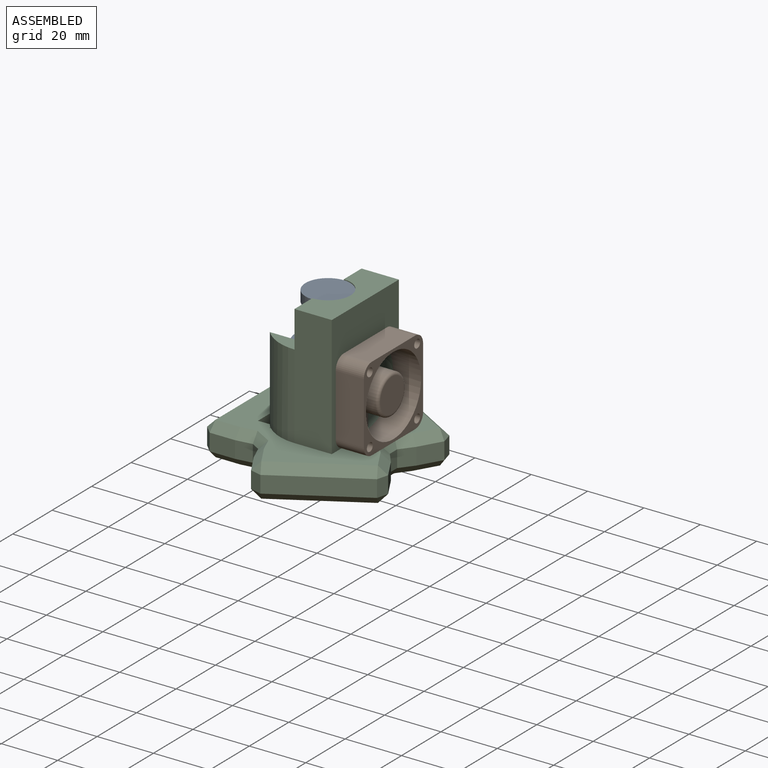
[diagram: assembled view]
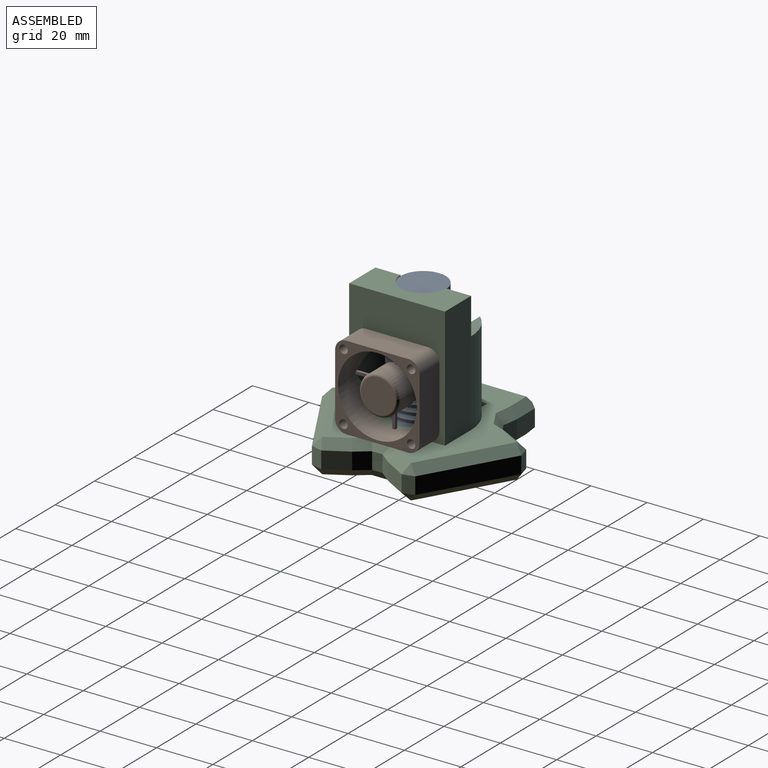
[diagram: assembled view, second angle]
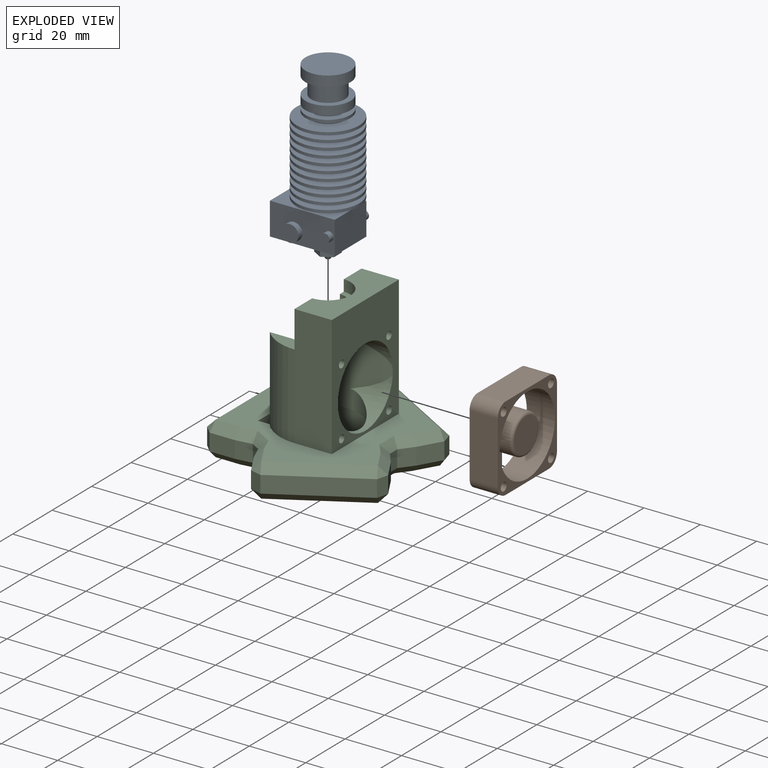
[diagram: exploded view]
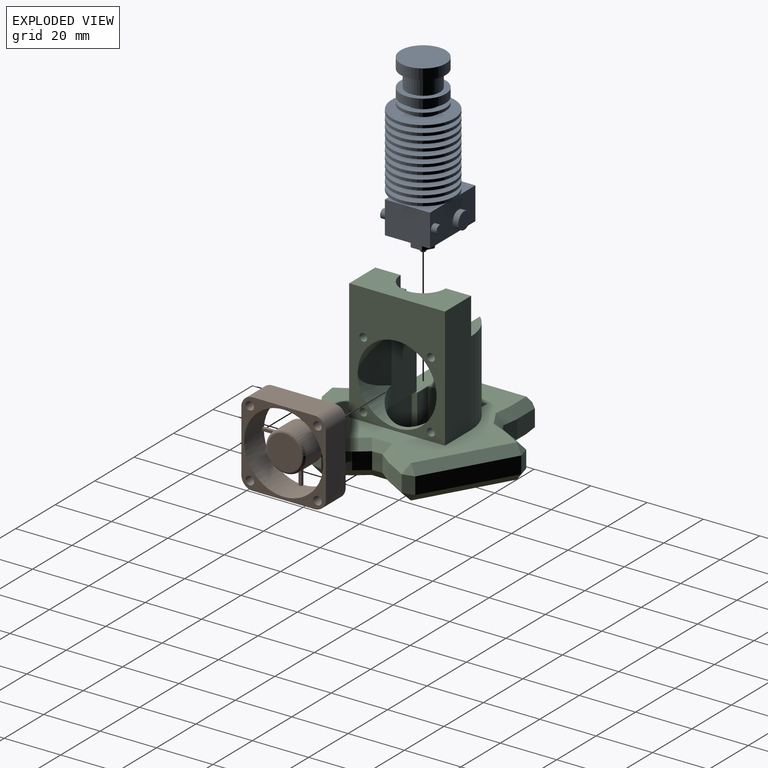
[diagram: exploded view, second angle]
ASSEMBLY  parts=3 mates=2
PART A: 81 faces, bbox 26.2x22.3x62.3 mm
  f0: plane 23x16mm, normal (0,0,-1), area 348.4mm2, adj f57,f58,f59,f60,f70
  f1: cylinder r=8mm len=16mm, axis (0,0,1), area 186mm2, adj f2,f55
  f2: plane 16x16mm, normal (0,0,-1), area 88mm2, adj f1,f3
  f3: cylinder r=6mm len=12mm, axis (0,0,1), area 226.2mm2, adj f2,f4
  f4: plane 16x16mm, normal (0,0,1), area 88mm2, adj f3,f5
  f5: cylinder r=8mm len=16mm, axis (0,0,1), area 150.8mm2, adj f4,f6
  f6: plane 16x16mm, normal (0,0,-1), area 103.4mm2, adj f5,f7
  f7: cylinder r=5.58mm len=11.15mm, axis (0,0,1), area 52.5mm2, adj f6,f8
  f8: plane 16x16mm, normal (0,0,1), area 103.4mm2, adj f7,f9
  f9: cylinder r=8mm len=16mm, axis (0,0,1), area 50.3mm2, adj f8,f10
  f10: plane 16x16mm, normal (0,0,-1), area 103.4mm2, adj f9,f11
  f11: cylinder r=5.58mm len=11.15mm, axis (0,0,1), area 52.5mm2, adj f10,f12
  f12: plane 22.3x22.3mm, normal (0,0,1), area 292.9mm2, adj f11,f13
  f13: cylinder r=11.15mm len=22.3mm, axis (0,0,1), area 70.1mm2, adj f12,f14
  f14: plane 22.3x22.3mm, normal (0,0,-1), area 292.9mm2, adj f13,f15
  f15: cylinder r=5.58mm len=11.15mm, axis (0,0,1), area 52.5mm2, adj f14,f16
  f16: plane 22.3x22.3mm, normal (0,0,1), area 292.9mm2, adj f15,f17
  f17: cylinder r=11.15mm len=22.3mm, axis (0,0,1), area 70.1mm2, adj f16,f18
  f18: plane 22.3x22.3mm, normal (0,0,-1), area 292.9mm2, adj f17,f19
  f19: cylinder r=5.58mm len=11.15mm, axis (0,0,1), area 52.5mm2, adj f18,f20
  f20: plane 22.3x22.3mm, normal (0,0,1), area 292.9mm2, adj f19,f21
  f21: cylinder r=11.15mm len=22.3mm, axis (0,0,1), area 70.1mm2, adj f20,f22
  f22: plane 22.3x22.3mm, normal (0,0,-1), area 292.9mm2, adj f21,f23
  f23: cylinder r=5.58mm len=11.15mm, axis (0,0,1), area 52.5mm2, adj f22,f24
  f24: plane 22.3x22.3mm, normal (0,0,1), area 292.9mm2, adj f23,f25
  f25: cylinder r=11.15mm len=22.3mm, axis (0,0,1), area 70.1mm2, adj f24,f26
  f26: plane 22.3x22.3mm, normal (0,0,-1), area 292.9mm2, adj f25,f27
  f27: cylinder r=5.58mm len=11.15mm, axis (0,0,1), area 52.5mm2, adj f26,f28
  f28: plane 22.3x22.3mm, normal (0,0,1), area 292.9mm2, adj f27,f29
  f29: cylinder r=11.15mm len=22.3mm, axis (0,0,1), area 70.1mm2, adj f28,f30
  f30: plane 22.3x22.3mm, normal (0,0,-1), area 292.9mm2, adj f29,f31
  f31: cylinder r=5.58mm len=11.15mm, axis (0,0,1), area 52.5mm2, adj f30,f32
  f32: plane 22.3x22.3mm, normal (0,0,1), area 292.9mm2, adj f31,f33
  f33: cylinder r=11.15mm len=22.3mm, axis (0,0,1), area 70.1mm2, adj f32,f34
  f34: plane 22.3x22.3mm, normal (0,0,-1), area 292.9mm2, adj f33,f35
  f35: cylinder r=5.58mm len=11.15mm, axis (0,0,1), area 52.5mm2, adj f34,f36
  f36: plane 22.3x22.3mm, normal (0,0,1), area 292.9mm2, adj f35,f37
  f37: cylinder r=11.15mm len=22.3mm, axis (0,0,1), area 70.1mm2, adj f36,f38
  f38: plane 22.3x22.3mm, normal (0,0,-1), area 292.9mm2, adj f37,f39
  f39: cylinder r=5.58mm len=11.15mm, axis (0,0,1), area 52.5mm2, adj f38,f40
  f40: plane 22.3x22.3mm, normal (0,0,1), area 292.9mm2, adj f39,f41
  f41: cylinder r=11.15mm len=22.3mm, axis (0,0,1), area 70.1mm2, adj f40,f42
  f42: plane 22.3x22.3mm, normal (0,0,-1), area 292.9mm2, adj f41,f43
  f43: cylinder r=5.58mm len=11.15mm, axis (0,0,1), area 52.5mm2, adj f42,f44
  f44: plane 22.3x22.3mm, normal (0,0,1), area 292.9mm2, adj f43,f45
  f45: cylinder r=11.15mm len=22.3mm, axis (0,0,1), area 70.1mm2, adj f44,f46
  f46: plane 22.3x22.3mm, normal (0,0,-1), area 292.9mm2, adj f45,f47
  f47: cylinder r=5.58mm len=11.15mm, axis (0,0,1), area 52.5mm2, adj f46,f48
  f48: plane 22.3x22.3mm, normal (0,0,1), area 292.9mm2, adj f47,f49
  f49: cylinder r=11.15mm len=22.3mm, axis (0,0,1), area 70.1mm2, adj f48,f50
  f50: plane 22.3x22.3mm, normal (0,0,-1), area 292.9mm2, adj f49,f51
  f51: cylinder r=5.58mm len=11.15mm, axis (0,0,1), area 52.5mm2, adj f50,f52
  f52: plane 22.3x22.3mm, normal (0,0,1), area 292.9mm2, adj f51,f53
  f53: cylinder r=11.15mm len=22.3mm, axis (0,0,1), area 70.1mm2, adj f52,f54
  f54: plane 22.3x22.3mm, normal (0,0,-1), area 383.7mm2, adj f53,f56
  f55: plane 16x16mm, normal (0,0,1), area 201.1mm2, adj f1
  f56: cylinder r=1.47mm len=2.95mm, axis (0,0,1), area 19.5mm2, adj f54,f61
  f57: plane 16x11.5mm, normal (1,0,0), area 184mm2, adj f0,f58,f60,f61
  f58: plane 23x11.5mm, normal (0,-1,0), area 228.7mm2, adj f0,f57,f59,f61,f62,f64
  f59: plane 16x11.5mm, normal (-1,0,0), area 184mm2, adj f0,f58,f60,f61
  f60: plane 23x11.5mm, normal (0,1,0), area 228.7mm2, adj f0,f57,f59,f61,f66,f68
  f61: plane 23x16mm, normal (0,0,1), area 361.2mm2, adj f56,f57,f58,f59,f60
  f62: cylinder r=3mm len=6mm, axis (0,1,0), area 37.7mm2, adj f58,f63
  f63: plane 6x6mm, normal (0,-1,0), area 28.3mm2, adj f62
  f64: cylinder r=1.55mm len=3.1mm, axis (0,1,0), area 19.5mm2, adj f58,f65
  f65: plane 3.1x3.1mm, normal (0,-1,0), area 7.5mm2, adj f64
  f66: cylinder r=3mm len=6mm, axis (0,-1,0), area 37.7mm2, adj f60,f67
  f67: plane 6x6mm, normal (0,1,0), area 28.3mm2, adj f66
  f68: cylinder r=1.55mm len=3.1mm, axis (0,-1,0), area 19.5mm2, adj f60,f69
  f69: plane 3.1x3.1mm, normal (0,1,0), area 7.5mm2, adj f68
  f70: cylinder r=2.5mm len=5mm, axis (0,0,1), area 15.7mm2, adj f0,f71
  f71: plane 8.08x7mm, normal (0,0,1), area 22.8mm2, adj f70,f75,f76,f77,f78,f79,f80
  f72: plane 1.54x1.54mm, normal (0,0,-1), area 1.9mm2, adj f73
  f73: cone r=0.77mm half-angle=32deg, axis (0,0,1), area 20.7mm2, adj f72,f74
  f74: plane 8.08x7mm, normal (0,0,-1), area 29.6mm2, adj f73,f75,f76,f77,f78,f79,f80
  f75: plane 3.5x3mm, normal (0.5,0.87,0), area 12.1mm2, adj f71,f74,f76,f80
  f76: plane 3.5x3mm, normal (-0.5,0.87,0), area 12.1mm2, adj f71,f74,f75,f77
  f77: plane 4.04x3mm, normal (-1,0,0), area 12.1mm2, adj f71,f74,f76,f78
  f78: plane 3.5x3mm, normal (-0.5,-0.87,0), area 12.1mm2, adj f71,f74,f77,f79
  f79: plane 3.5x3mm, normal (0.5,-0.87,0), area 12.1mm2, adj f71,f74,f78,f80
  f80: plane 4.04x3mm, normal (1,0,0), area 12.1mm2, adj f71,f74,f75,f79
PART B: 30 faces, bbox 30x10x30 mm
  f0: plane 22x10mm, normal (-1,0,0), area 220mm2, adj f9,f10,f11,f14
  f1: plane 22x10mm, normal (0,0,-1), area 220mm2, adj f9,f10,f11,f12
  f2: plane 22x10mm, normal (1,0,0), area 220mm2, adj f9,f10,f12,f13
  f3: cylinder r=1.5mm len=10mm, axis (0,1,0), area 94.2mm2, adj f9,f10
  f4: cylinder r=1.5mm len=10mm, axis (0,1,0), area 94.2mm2, adj f9,f10
  f5: cylinder r=1.5mm len=10mm, axis (0,1,0), area 94.2mm2, adj f9,f10
  f6: cylinder r=14mm len=28mm, axis (0,1,0), area 875.6mm2, adj f9,f10,f15,f16,f17,f18,f19,f20
  f7: plane 22x10mm, normal (0,0,1), area 220mm2, adj f9,f10,f13,f14
  f8: cylinder r=1.5mm len=10mm, axis (0,1,0), area 94.2mm2, adj f9,f10
  f9: plane 30x30mm, normal (0,-1,0), area 242.2mm2, adj f0,f1,f2,f3,f4,f5,f6,f7
  f10: plane 30x30mm, normal (0,1,0), area 424.2mm2, adj f0,f1,f2,f3,f4,f5,f6,f7
  f11: cylinder r=4mm len=10mm, axis (0,-1,0), area 62.8mm2, adj f0,f1,f9,f10
  f12: cylinder r=4mm len=10mm, axis (0,1,0), area 62.8mm2, adj f1,f2,f9,f10
  f13: cylinder r=4mm len=10mm, axis (0,-1,0), area 62.8mm2, adj f2,f7,f9,f10
  f14: cylinder r=4mm len=10mm, axis (0,1,0), area 62.8mm2, adj f0,f7,f9,f10
  f15: plane 7x1mm, normal (0,0,1), area 7mm2, adj f6,f10,f17,f27
  f16: plane 7.04x1mm, normal (0,0,-1), area 7mm2, adj f6,f10,f17,f27
  f17: plane 7.07x1mm, normal (0,-1,0), area 7mm2, adj f6,f15,f16,f27
  f18: plane 7x1mm, normal (-1,0,0), area 7mm2, adj f6,f10,f20,f27
  f19: plane 7.04x1mm, normal (1,0,0), area 7mm2, adj f6,f10,f20,f27
  f20: plane 7.07x1mm, normal (0,-1,0), area 7mm2, adj f6,f18,f19,f27
  f21: plane 7.04x1mm, normal (0,0,1), area 7mm2, adj f6,f10,f23,f27
  f22: plane 7x1mm, normal (0,0,-1), area 7mm2, adj f6,f10,f23,f27
  f23: plane 7.07x1mm, normal (0,-1,0), area 7mm2, adj f6,f21,f22,f27
  f24: plane 7.04x1mm, normal (-1,0,0), area 7mm2, adj f6,f10,f26,f27
  f25: plane 7x1mm, normal (1,0,0), area 7mm2, adj f6,f10,f26,f27
  f26: plane 7.07x1mm, normal (0,-1,0), area 7mm2, adj f6,f24,f25,f27
  f27: cylinder r=7mm len=14mm, axis (0,1,0), area 369.8mm2, adj f10,f15,f16,f17,f18,f19,f20,f21
  f28: plane 12x12mm, normal (0,-1,0), area 113.1mm2, adj f29
  f29: torus R=6mm, axis (0,-1,0), area 65.5mm2, adj f27,f28
PART C: 119 faces, bbox 62.3x70.7x55 mm
  f0: plane 7.18x2.59mm, normal (0,0,-1), area 12.7mm2, adj f1,f99,f113
  f1: cylinder r=11.25mm len=7.18mm, axis (0,0,-1), area 13mm2, adj f0,f90,f99
  f2: plane 16x8mm, normal (0,0,1), area 44mm2, adj f111,f113,f115,f116
  f3: plane 12.75x5.75mm, normal (0,0,1), area 50.8mm2, adj f96,f97,f111
  f4: plane 22.5x8.46mm, normal (0,0,-1), area 48.8mm2, adj f82,f88,f89,f96,f97,f101
  f5: plane 22.5x8.46mm, normal (0,0,-1), area 48.8mm2, adj f82,f83,f84,f90,f91,f101
  f6: plane 16.67x13.25mm, normal (0.2,0.98,0), area 153.6mm2, adj f90,f98,f99
  f7: plane 16.67x13.25mm, normal (0.2,-0.98,0), area 153.6mm2, adj f97,f98,f99
  f8: plane 65.5x56.72mm, normal (0,0,1), area 1409.9mm2, adj f25,f33,f34,f37,f38,f43,f44,f47
  f9: plane 6x5.41mm, normal (-0.93,-0.38,0), area 35mm2, adj f10,f42,f47,f50
  f10: plane 7.79x6mm, normal (-0.87,-0.5,0), area 54mm2, adj f9,f51,f55,f56
  f11: plane 29.45x17mm, normal (0.5,-0.87,0), area 204mm2, adj f56,f61,f65,f66
  f12: plane 7.79x6mm, normal (0.87,0.5,0), area 54mm2, adj f13,f66,f71,f74
  f13: plane 6x4.62mm, normal (0.79,0.61,0), area 35mm2, adj f12,f75,f78,f81
  f14: plane 6x4.62mm, normal (0.79,-0.61,0), area 35mm2, adj f15,f76,f77,f81
  f15: plane 7.79x6mm, normal (0.87,-0.5,0), area 54mm2, adj f14,f63,f72,f73
  f16: plane 29.45x17mm, normal (0.5,0.87,0), area 204mm2, adj f53,f62,f63,f64
  f17: plane 7.79x6mm, normal (-0.87,0.5,0), area 54mm2, adj f18,f52,f53,f54
  f18: plane 6x5.41mm, normal (-0.93,0.38,0), area 35mm2, adj f17,f39,f48,f49
  f19: plane 6x5.79mm, normal (0.14,0.99,0), area 35mm2, adj f20,f38,f39,f40
  f20: plane 9x6mm, normal (0,1,0), area 54mm2, adj f19,f26,f34,f35
  f21: plane 34x6mm, normal (-1,0,0), area 204mm2, adj f25,f26,f27,f28
  f22: plane 9x6mm, normal (0,-1,0), area 54mm2, adj f23,f28,f33,f36
  f23: plane 6x5.79mm, normal (0.14,-0.99,0), area 35mm2, adj f22,f37,f41,f42
  f24: plane 65.5x56.72mm, normal (0,0,-1), area 1669.7mm2, adj f27,f35,f36,f40,f41,f45,f46,f49
  f25: plane 34x3mm, normal (-0.71,0,0.71), area 144.2mm2, adj f8,f21,f29,f30
  f26: plane 6x3mm, normal (-0.71,0.71,0), area 25.5mm2, adj f20,f21,f30,f31
  f27: plane 34x3mm, normal (-0.71,0,-0.71), area 144.2mm2, adj f21,f24,f31,f32
  f28: plane 6x3mm, normal (-0.71,-0.71,0), area 25.5mm2, adj f21,f22,f29,f32
  f29: plane 3x3mm, normal (-0.58,-0.58,0.58), area 7.8mm2, adj f25,f28,f33
  f30: plane 3x3mm, normal (-0.58,0.58,0.58), area 7.8mm2, adj f25,f26,f34
  f31: plane 3x3mm, normal (-0.58,0.58,-0.58), area 7.8mm2, adj f26,f27,f35
  f32: plane 3x3mm, normal (-0.58,-0.58,-0.58), area 7.8mm2, adj f27,f28,f36
  f33: plane 9x3mm, normal (0,-0.71,0.71), area 37.8mm2, adj f8,f22,f29,f37
  f34: plane 9x3mm, normal (0,0.71,0.71), area 37.8mm2, adj f8,f20,f30,f38
  f35: plane 9x3mm, normal (0,0.71,-0.71), area 37.8mm2, adj f20,f24,f31,f40
  f36: plane 9x3mm, normal (0,-0.71,-0.71), area 37.8mm2, adj f22,f24,f32,f41
  f37: plane 5.99x3.76mm, normal (0.1,-0.7,0.71), area 24.3mm2, adj f8,f23,f33,f43
  f38: plane 5.99x3.76mm, normal (0.1,0.7,0.71), area 24.3mm2, adj f8,f19,f34,f44
  f39: plane 6x3.18mm, normal (-0.5,0.87,0), area 22mm2, adj f18,f19,f44,f45
  f40: plane 5.99x3.76mm, normal (0.1,0.7,-0.71), area 24.3mm2, adj f19,f24,f35,f45
  f41: plane 5.99x3.76mm, normal (0.1,-0.7,-0.71), area 24.3mm2, adj f23,f24,f36,f46
  f42: plane 6x3.18mm, normal (-0.5,-0.87,0), area 22mm2, adj f9,f23,f43,f46
  f43: plane 6.36x4.81mm, normal (-0.39,-0.68,0.62), area 21.1mm2, adj f8,f37,f42,f47
  f44: plane 6.36x4.81mm, normal (-0.39,0.68,0.62), area 21.1mm2, adj f8,f38,f39,f48
  f45: plane 6.36x4.81mm, normal (-0.39,0.68,-0.62), area 21.1mm2, adj f24,f39,f40,f49
  f46: plane 6.36x4.81mm, normal (-0.39,-0.68,-0.62), area 21.1mm2, adj f24,f41,f42,f50
  f47: plane 6.54x4.91mm, normal (-0.65,-0.27,0.71), area 24.3mm2, adj f8,f9,f43,f51
  f48: plane 6.54x4.91mm, normal (-0.65,0.27,0.71), area 24.3mm2, adj f8,f18,f44,f52
  f49: plane 6.54x4.91mm, normal (-0.65,0.27,-0.71), area 24.3mm2, adj f18,f24,f45,f54
  f50: plane 6.54x4.91mm, normal (-0.65,-0.27,-0.71), area 24.3mm2, adj f9,f24,f46,f55
  f51: plane 9.12x7.1mm, normal (-0.61,-0.35,0.71), area 37.8mm2, adj f8,f10,f47,f57
  f52: plane 9.12x7.1mm, normal (-0.61,0.35,0.71), area 37.8mm2, adj f8,f17,f48,f58
  f53: plane 6x4.1mm, normal (-0.26,0.97,0), area 25.5mm2, adj f16,f17,f58,f59
  f54: plane 9.12x7.1mm, normal (-0.61,0.35,-0.71), area 37.8mm2, adj f17,f24,f49,f59
  f55: plane 9.12x7.1mm, normal (-0.61,-0.35,-0.71), area 37.8mm2, adj f10,f24,f50,f60
  f56: plane 6x4.1mm, normal (-0.26,-0.97,0), area 25.5mm2, adj f10,f11,f57,f60
  f57: plane 4.1x3mm, normal (-0.21,-0.79,0.58), area 7.8mm2, adj f51,f56,f61
  f58: plane 4.1x3mm, normal (-0.21,0.79,0.58), area 7.8mm2, adj f52,f53,f62
  f59: plane 4.1x3mm, normal (-0.21,0.79,-0.58), area 7.8mm2, adj f53,f54,f64
  f60: plane 4.1x3mm, normal (-0.21,-0.79,-0.58), area 7.8mm2, adj f55,f56,f65
  f61: plane 30.95x19.6mm, normal (0.35,-0.61,0.71), area 144.2mm2, adj f8,f11,f57,f67
  f62: plane 30.95x19.6mm, normal (0.35,0.61,0.71), area 144.2mm2, adj f8,f16,f58,f68
  f63: plane 6x4.1mm, normal (0.97,0.26,0), area 25.5mm2, adj f15,f16,f68,f69
  f64: plane 30.95x19.6mm, normal (0.35,0.61,-0.71), area 144.2mm2, adj f16,f24,f59,f69
  f65: plane 30.95x19.6mm, normal (0.35,-0.61,-0.71), area 144.2mm2, adj f11,f24,f60,f70
  f66: plane 6x4.1mm, normal (0.97,-0.26,0), area 25.5mm2, adj f11,f12,f67,f70
  f67: plane 4.1x3mm, normal (0.79,-0.21,0.58), area 7.8mm2, adj f61,f66,f71
  f68: plane 4.1x3mm, normal (0.79,0.21,0.58), area 7.8mm2, adj f62,f63,f72
  f69: plane 4.1x3mm, normal (0.79,0.21,-0.58), area 7.8mm2, adj f63,f64,f73
  f70: plane 4.1x3mm, normal (0.79,-0.21,-0.58), area 7.8mm2, adj f65,f66,f74
  f71: plane 9.29x7mm, normal (0.61,0.35,0.71), area 37.8mm2, adj f8,f12,f67,f75
  f72: plane 9.29x7mm, normal (0.61,-0.35,0.71), area 37.8mm2, adj f8,f15,f68,f76
  f73: plane 9.29x7mm, normal (0.61,-0.35,-0.71), area 37.8mm2, adj f15,f24,f69,f77
  f74: plane 9.29x7mm, normal (0.61,0.35,-0.71), area 37.8mm2, adj f12,f24,f70,f78
  f75: plane 6.29x5.95mm, normal (0.56,0.43,0.71), area 24.3mm2, adj f8,f13,f71,f79
  f76: plane 6.29x5.95mm, normal (0.56,-0.43,0.71), area 24.3mm2, adj f8,f14,f72,f79
  f77: plane 6.29x5.95mm, normal (0.56,-0.43,-0.71), area 24.3mm2, adj f14,f24,f73,f80
  f78: plane 6.29x5.95mm, normal (0.56,0.43,-0.71), area 24.3mm2, adj f13,f24,f74,f80
  f79: plane 7.35x3mm, normal (0.78,0,0.62), area 21.1mm2, adj f8,f75,f76,f81
  f80: plane 7.35x3mm, normal (0.78,0,-0.62), area 21.1mm2, adj f24,f77,f78,f81
  f81: plane 6x3.67mm, normal (1,0,0), area 22mm2, adj f13,f14,f79,f80
  f82: plane 25x12mm, normal (-1,0,0), area 300mm2, adj f4,f5,f24,f83,f89,f102
  f83: plane 22.5x12mm, normal (0,1,0), area 270mm2, adj f5,f8,f24,f82,f84
  f84: plane 12x2mm, normal (1,0,0), area 24mm2, adj f5,f8,f24,f83,f85
  f85: plane 12x5.5mm, normal (0,1,0), area 66mm2, adj f8,f24,f84,f86
  f86: plane 21x12mm, normal (1,0,0), area 252mm2, adj f8,f24,f85,f87
  f87: plane 12x5.5mm, normal (0,-1,0), area 66mm2, adj f8,f24,f86,f88
  f88: plane 12x2mm, normal (1,0,0), area 24mm2, adj f4,f8,f24,f87,f89
  f89: plane 22.5x12mm, normal (0,-1,0), area 270mm2, adj f4,f8,f24,f82,f88
  f90: plane 30x12.75mm, normal (0,1,0), area 382.4mm2, adj f1,f5,f6,f8,f91,f94,f101,f113
  f91: cylinder r=17mm len=30mm, axis (0,0,-1), area 432.3mm2, adj f5,f8,f90,f92,f94
  f92: plane 43x13.25mm, normal (0,-1,0), area 569.7mm2, adj f8,f91,f93,f113,f117
  f93: plane 43x34mm, normal (1,0,0), area 822.5mm2, adj f8,f92,f95,f98,f99,f103,f105,f107
  f94: plane 12.75x5.75mm, normal (0,0,1), area 50.8mm2, adj f90,f91,f113
  f95: plane 43x13.25mm, normal (0,1,0), area 569.7mm2, adj f8,f93,f96,f111,f117
  f96: cylinder r=17mm len=30mm, axis (0,0,-1), area 432.3mm2, adj f3,f4,f8,f95,f97
  f97: plane 30x12.75mm, normal (0,-1,0), area 382.4mm2, adj f3,f4,f7,f8,f96,f100,f101,f111
  f98: cylinder r=14mm len=28mm, axis (1,0,0), area 205.2mm2, adj f6,f7,f93,f101
  f99: cylinder r=14mm len=28mm, axis (1,0,0), area 285.3mm2, adj f0,f1,f6,f7,f93,f100,f111,f112
  f100: cylinder r=11.25mm len=7.18mm, axis (0,0,-1), area 13mm2, adj f97,f99,f118
  f101: cylinder r=11.25mm len=22.5mm, axis (0,0,-1), area 129.1mm2, adj f4,f5,f90,f97,f98,f102
  f102: plane 8.08x0.75mm, normal (0,0,1), area 4.1mm2, adj f82,f101
  f103: cylinder r=1.38mm len=8mm, axis (1,0,0), area 69.1mm2, adj f93,f104
  f104: plane 2.75x2.75mm, normal (1,0,0), area 5.9mm2, adj f103
  f105: cylinder r=1.38mm len=8mm, axis (1,0,0), area 69.1mm2, adj f93,f106
  f106: plane 2.75x2.75mm, normal (1,0,0), area 5.9mm2, adj f105
  f107: cylinder r=1.38mm len=8mm, axis (1,0,0), area 69.1mm2, adj f93,f108
  f108: plane 2.75x2.75mm, normal (1,0,0), area 5.9mm2, adj f107
  f109: cylinder r=1.38mm len=8mm, axis (1,0,0), area 69.1mm2, adj f93,f110
  f110: plane 2.75x2.75mm, normal (1,0,0), area 5.9mm2, adj f109
  f111: plane 17x11mm, normal (-1,0,0), area 141.8mm2, adj f2,f3,f95,f97,f99,f112,f114,f115
  f112: cylinder r=8mm len=16mm, axis (0,0,-1), area 131.3mm2, adj f99,f111,f113,f114
  f113: plane 17x11mm, normal (-1,0,0), area 141.8mm2, adj f0,f2,f90,f92,f94,f99,f112,f114
  f114: plane 16x8mm, normal (0,0,-1), area 44mm2, adj f111,f112,f113,f115
  f115: cylinder r=6mm len=12mm, axis (0,0,-1), area 113.1mm2, adj f2,f111,f113,f114
  f116: cylinder r=8mm len=16mm, axis (0,0,-1), area 100.5mm2, adj f2,f111,f113,f117
  f117: plane 34x13.25mm, normal (0,0,1), area 350mm2, adj f92,f93,f95,f111,f113,f116
  f118: plane 7.18x2.59mm, normal (0,0,-1), area 12.7mm2, adj f99,f100,f111
PLACE A t=(-8.82,12.48,8.72)mm
PLACE B rot(axis=(0,0,1),90deg) t=(4.43,-2.52,8.72)mm
PLACE C t=(-8.82,12.48,-3.28)mm fixed
MATE fastened C.f112 <-> A.f1  axis (0,0,-1) through (-8.82,12.48,41.72)mm
MATE fastened C.f103 <-> B.f5  axis (1,0,0) through (4.43,0.48,35.72)mm
